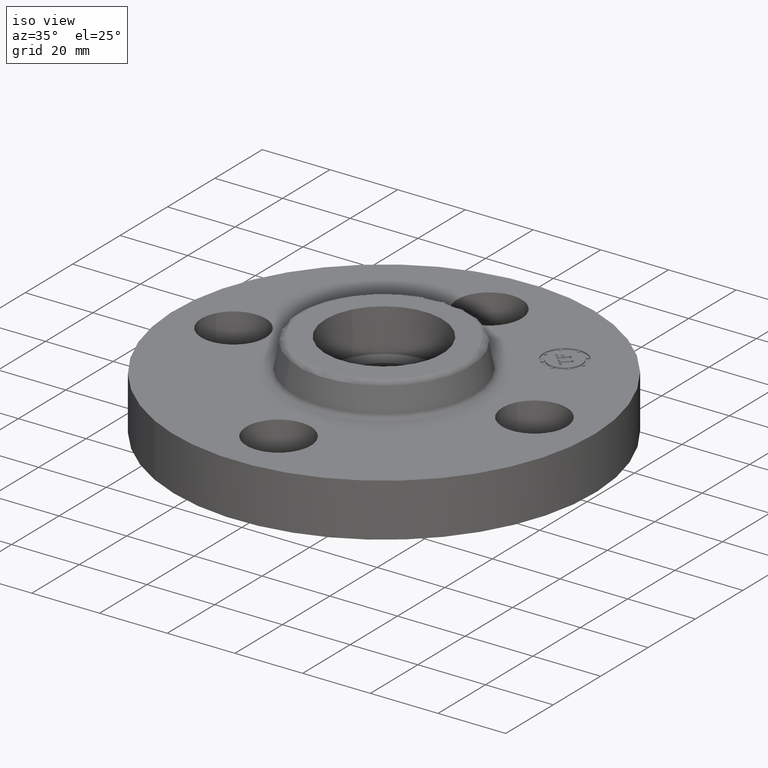
[diagram: clean part render]
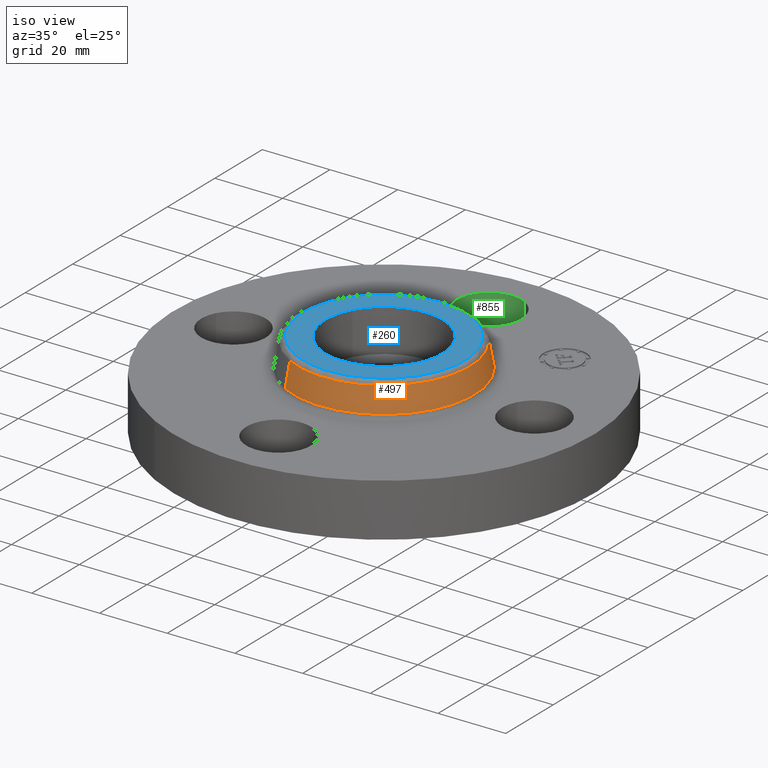
[diagram: same view with three faces highlighted in distinct colors, each labeled with its STEP entity id]
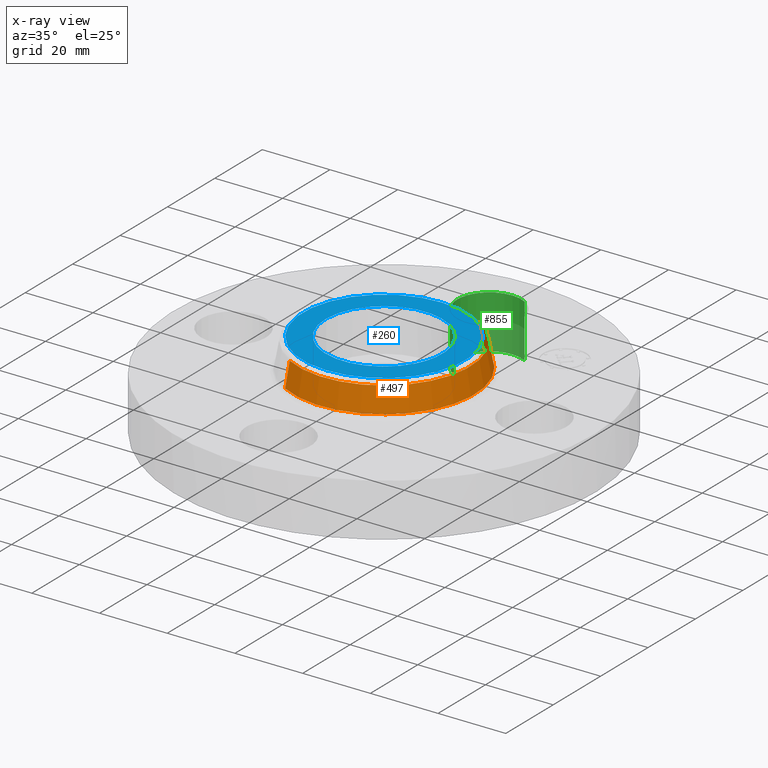
[diagram: x-ray of the same camera — body ghosted, the three highlighted faces saturated]
A machine part, iso view with three faces highlighted in distinct colors.
The next image is the same camera in x-ray (body ghosted, the three faces saturated) — at least one of them is partly hidden behind the body in this view.
Their STEP definitions:

[orange] entity #497 — the highlighted conical surface has half-angle 10 deg.
#310=AXIS2_PLACEMENT_3D('Circle Axis2P3D',#308,#309,$) ;
#470=AXIS2_PLACEMENT_3D('Cone Axis2P3D',#467,#468,#469) ;
#474=AXIS2_PLACEMENT_3D('Circle Axis2P3D',#472,#473,$) ;
#308=CARTESIAN_POINT('Axis2P3D Location',(0.,0.,0.950418890665)) ;
#312=CARTESIAN_POINT('Vertex',(0.480258892683,0.879108006299,0.950418890663)) ;
#314=CARTESIAN_POINT('Vertex',(-0.480258892683,-0.879108006299,0.950418890664)) ;
#467=CARTESIAN_POINT('Axis2P3D Location',(0.,0.,0.950418890664)) ;
#472=CARTESIAN_POINT('Axis2P3D Location',(0.,0.,0.669581109343)) ;
#476=CARTESIAN_POINT('Vertex',(0.503999699238,0.922565261201,0.669581109345)) ;
#478=CARTESIAN_POINT('Vertex',(-0.503999699238,-0.922565261201,0.669581109344)) ;
#481=CARTESIAN_POINT('Line Origine',(0.492129295958,0.900836633746,0.810000000002)) ;
#486=CARTESIAN_POINT('Line Origine',(-0.492129295958,-0.900836633746,0.810000000002)) ;
#309=DIRECTION('Axis2P3D Direction',(-0.,0.,-0.0393700787402)) ;
#468=DIRECTION('Axis2P3D Direction',(0.,0.,-0.0393700787402)) ;
#469=DIRECTION('Axis2P3D XDirection',(0.0188750212049,0.0345504945626,0.)) ;
#473=DIRECTION('Axis2P3D Direction',(-0.,0.,-0.0393700787402)) ;
#482=DIRECTION('Vector Direction',(0.00327761303565,0.00599963041827,-0.03877195878)) ;
#487=DIRECTION('Vector Direction',(-0.00327761303565,-0.00599963041827,-0.03877195878)) ;
#483=VECTOR('Line Direction',#482,0.0393700787402) ;
#488=VECTOR('Line Direction',#487,0.0393700787402) ;
#492=ORIENTED_EDGE('',*,*,#480,.F.) ;
#493=ORIENTED_EDGE('',*,*,#485,.T.) ;
#494=ORIENTED_EDGE('',*,*,#316,.T.) ;
#495=ORIENTED_EDGE('',*,*,#490,.F.) ;
#497=ADVANCED_FACE('PartBody',(#496),#471,.T.) ;
#311=CIRCLE('generated circle',#310,1.00173823464) ;
#475=CIRCLE('generated circle',#474,1.05125751269) ;
#471=CONICAL_SURFACE('Cone',#470,1.00173823464,0.174532925199) ;
#316=EDGE_CURVE('',#313,#315,#311,.T.) ;
#480=EDGE_CURVE('',#477,#479,#475,.T.) ;
#485=EDGE_CURVE('',#477,#313,#484,.F.) ;
#490=EDGE_CURVE('',#479,#315,#489,.F.) ;
#491=EDGE_LOOP('',(#492,#493,#494,#495)) ;
#496=FACE_OUTER_BOUND('',#491,.T.) ;
#484=LINE('Line',#481,#483) ;
#489=LINE('Line',#486,#488) ;
#313=VERTEX_POINT('',#312) ;
#315=VERTEX_POINT('',#314) ;
#477=VERTEX_POINT('',#476) ;
#479=VERTEX_POINT('',#478) ;

[blue] entity #260 — the highlighted planar face has unit normal (0, 0, -1).
#142=AXIS2_PLACEMENT_3D('Circle Axis2P3D',#140,#141,$) ;
#236=AXIS2_PLACEMENT_3D('Plane Axis2P3D',#233,#234,#235) ;
#240=AXIS2_PLACEMENT_3D('Circle Axis2P3D',#238,#239,$) ;
#249=AXIS2_PLACEMENT_3D('Circle Axis2P3D',#247,#248,$) ;
#91=CARTESIAN_POINT('Control Point',(-0.596756142088,0.326009366253,1.)) ;
#92=CARTESIAN_POINT('Control Point',(-0.545546710587,0.419747601851,0.999999999999)) ;
#93=CARTESIAN_POINT('Control Point',(-0.475931819566,0.503430889087,0.999999999999)) ;
#94=CARTESIAN_POINT('Control Point',(-0.390529134758,0.572224389438,0.999999999998)) ;
#95=CARTESIAN_POINT('Control Point',(-0.197351584244,0.672618295801,0.999999999997)) ;
#96=CARTESIAN_POINT('Control Point',(0.0194447785343,0.69251401253,0.999999999996)) ;
#97=CARTESIAN_POINT('Control Point',(0.128477946693,0.68076954557,0.999999999996)) ;
#98=CARTESIAN_POINT('Control Point',(0.336064314615,0.615161601608,0.999999999995)) ;
#99=CARTESIAN_POINT('Control Point',(0.503430889087,0.475931819566,0.999999999994)) ;
#100=CARTESIAN_POINT('Control Point',(0.572224389438,0.390529134758,0.999999999993)) ;
#101=CARTESIAN_POINT('Control Point',(0.672618295801,0.197351584244,0.999999999992)) ;
#102=CARTESIAN_POINT('Control Point',(0.69251401253,-0.0194447785341,0.999999999991)) ;
#103=CARTESIAN_POINT('Control Point',(0.68076954557,-0.128477946693,0.99999999999)) ;
#104=CARTESIAN_POINT('Control Point',(0.647965573589,-0.232271130654,0.99999999999)) ;
#105=CARTESIAN_POINT('Control Point',(0.596756142088,-0.326009366252,0.999999999989)) ;
#106=CARTESIAN_POINT('Vertex',(-0.596756142102,0.326009366287,1.)) ;
#108=CARTESIAN_POINT('Vertex',(0.596756142102,-0.326009366244,1.)) ;
#140=CARTESIAN_POINT('Axis2P3D Location',(0.,-6.99353086378E-017,0.999999999989)) ;
#233=CARTESIAN_POINT('Axis2P3D Location',(0.,0.942649769464,1.)) ;
#238=CARTESIAN_POINT('Axis2P3D Location',(-1.28118688012E-011,-8.42426740789E-012,1.)) ;
#242=CARTESIAN_POINT('Vertex',(0.451930373441,0.827252999652,1.)) ;
#244=CARTESIAN_POINT('Vertex',(-0.45193037344,-0.827252999652,1.)) ;
#247=CARTESIAN_POINT('Axis2P3D Location',(1.28118688012E-011,-2.24225187848E-011,1.)) ;
#141=DIRECTION('Axis2P3D Direction',(0.,0.,-0.0393700787402)) ;
#234=DIRECTION('Axis2P3D Direction',(0.,0.,-0.0393700787402)) ;
#235=DIRECTION('Axis2P3D XDirection',(0.0393700787402,0.,0.)) ;
#239=DIRECTION('Axis2P3D Direction',(0.,0.,-0.0393700787402)) ;
#248=DIRECTION('Axis2P3D Direction',(0.,0.,-0.0393700787402)) ;
#253=ORIENTED_EDGE('',*,*,#246,.F.) ;
#254=ORIENTED_EDGE('',*,*,#251,.F.) ;
#257=ORIENTED_EDGE('',*,*,#110,.T.) ;
#258=ORIENTED_EDGE('',*,*,#144,.T.) ;
#259=FACE_BOUND('',#256,.T.) ;
#260=ADVANCED_FACE('PartBody',(#255,#259),#237,.F.) ;
#90=B_SPLINE_CURVE_WITH_KNOTS('',5,(#91,#92,#93,#94,#95,#96,#97,#98,#99,#100,#101,#102,#103,#104,#105),.UNSPECIFIED.,.F.,.U.,(6,3,3,3,6),(-27.1307941565,-13.5653970783,-1.7763568394E-015,13.5653970783,27.1307941565),.UNSPECIFIED.) ;
#143=CIRCLE('generated circle',#142,0.680000000003) ;
#241=CIRCLE('generated circle',#240,0.942649769456) ;
#250=CIRCLE('generated circle',#249,0.942649769456) ;
#110=EDGE_CURVE('',#107,#109,#90,.T.) ;
#144=EDGE_CURVE('',#109,#107,#143,.T.) ;
#246=EDGE_CURVE('',#243,#245,#241,.T.) ;
#251=EDGE_CURVE('',#245,#243,#250,.T.) ;
#252=EDGE_LOOP('',(#253,#254)) ;
#256=EDGE_LOOP('',(#257,#258)) ;
#255=FACE_OUTER_BOUND('',#252,.T.) ;
#237=PLANE('',#236) ;
#107=VERTEX_POINT('',#106) ;
#109=VERTEX_POINT('',#108) ;
#243=VERTEX_POINT('',#242) ;
#245=VERTEX_POINT('',#244) ;

[green] entity #855 — the highlighted cylindrical surface (partial cylindrical patch) has radius 9.525 mm, axis along (-0, 0, -1).
#443=AXIS2_PLACEMENT_3D('Circle Axis2P3D',#441,#442,$) ;
#828=AXIS2_PLACEMENT_3D('Cylinder Axis2P3D',#825,#826,#827) ;
#846=AXIS2_PLACEMENT_3D('Circle Axis2P3D',#844,#845,$) ;
#441=CARTESIAN_POINT('Axis2P3D Location',(-3.49676543189E-017,1.75,0.)) ;
#445=CARTESIAN_POINT('Vertex',(-0.179784576973,1.4209065393,0.)) ;
#447=CARTESIAN_POINT('Vertex',(0.179784576973,2.0790934607,0.)) ;
#825=CARTESIAN_POINT('Axis2P3D Location',(-3.21469784777E-016,1.75000000001,0.616062992128)) ;
#830=CARTESIAN_POINT('Line Origine',(-0.179784576977,1.4209065393,0.309999999994)) ;
#834=CARTESIAN_POINT('Vertex',(-0.179784576973,1.42090653929,0.620000000002)) ;
#837=CARTESIAN_POINT('Line Origine',(0.179784576977,2.07909346072,0.309999999994)) ;
#841=CARTESIAN_POINT('Vertex',(0.179784576977,2.07909346072,0.619999999987)) ;
#844=CARTESIAN_POINT('Axis2P3D Location',(-3.21469784777E-016,1.75000000001,0.619999999987)) ;
#442=DIRECTION('Axis2P3D Direction',(0.,0.,-0.0393700787402)) ;
#826=DIRECTION('Axis2P3D Direction',(-0.,0.,-0.0393700787402)) ;
#827=DIRECTION('Axis2P3D XDirection',(-0.0188750212049,-0.0345504945626,0.)) ;
#831=DIRECTION('Vector Direction',(0.,0.,-0.0393700787402)) ;
#838=DIRECTION('Vector Direction',(0.,0.,-0.0393700787402)) ;
#845=DIRECTION('Axis2P3D Direction',(-0.,0.,-0.0393700787402)) ;
#832=VECTOR('Line Direction',#831,0.0393700787402) ;
#839=VECTOR('Line Direction',#838,0.0393700787402) ;
#850=ORIENTED_EDGE('',*,*,#836,.F.) ;
#851=ORIENTED_EDGE('',*,*,#449,.T.) ;
#852=ORIENTED_EDGE('',*,*,#843,.T.) ;
#853=ORIENTED_EDGE('',*,*,#848,.F.) ;
#855=ADVANCED_FACE('PartBody',(#854),#829,.F.) ;
#444=CIRCLE('generated circle',#443,0.374999999988) ;
#847=CIRCLE('generated circle',#846,0.375000000001) ;
#829=CYLINDRICAL_SURFACE('generated cylinder',#828,0.375000000001) ;
#449=EDGE_CURVE('',#446,#448,#444,.T.) ;
#836=EDGE_CURVE('',#446,#835,#833,.F.) ;
#843=EDGE_CURVE('',#448,#842,#840,.F.) ;
#848=EDGE_CURVE('',#835,#842,#847,.T.) ;
#849=EDGE_LOOP('',(#850,#851,#852,#853)) ;
#854=FACE_OUTER_BOUND('',#849,.T.) ;
#833=LINE('Line',#830,#832) ;
#840=LINE('Line',#837,#839) ;
#446=VERTEX_POINT('',#445) ;
#448=VERTEX_POINT('',#447) ;
#835=VERTEX_POINT('',#834) ;
#842=VERTEX_POINT('',#841) ;